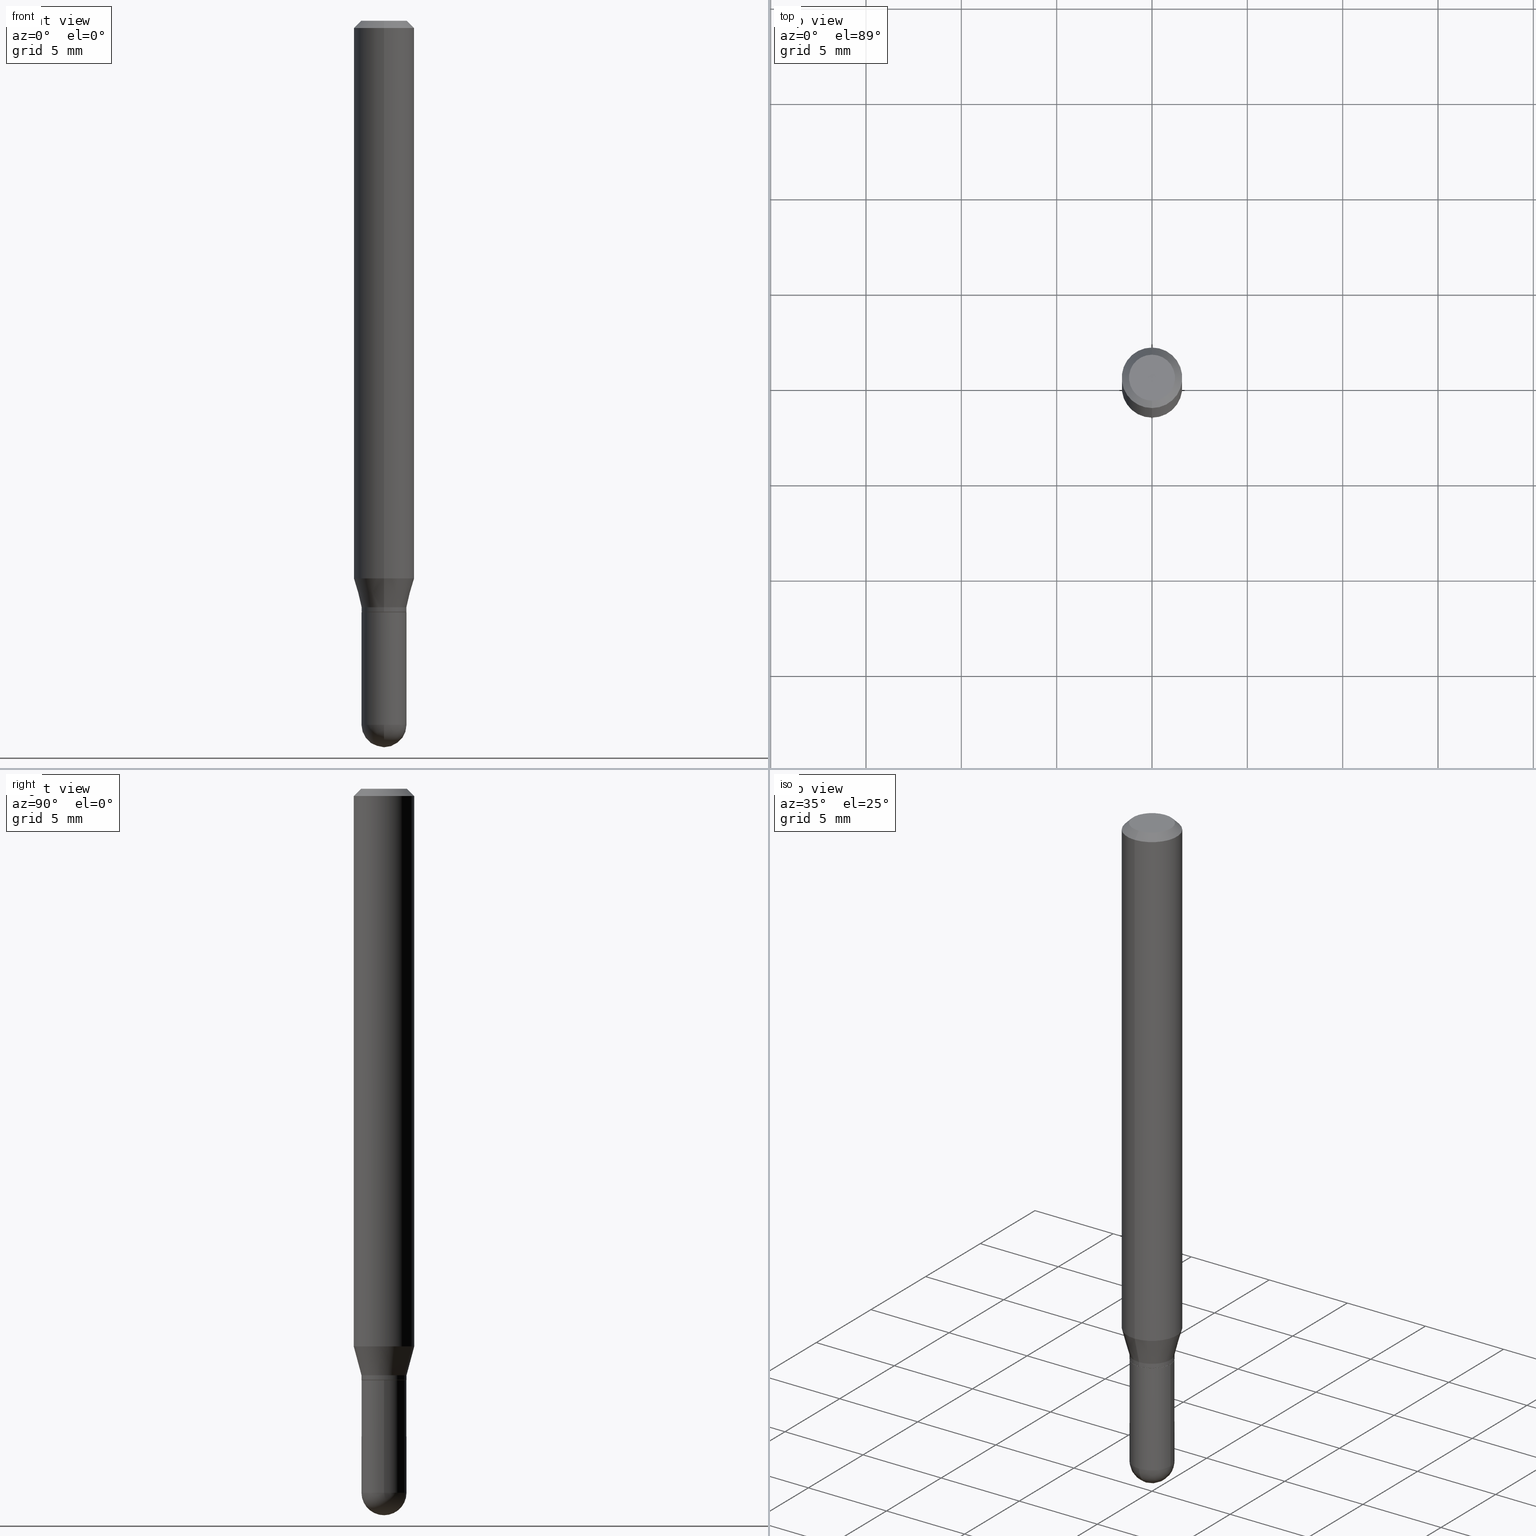
[diagram: canonical four-view strip — front | top / right | iso, engineering-drawing reading convention]
A machine part, canonical four-view strip (front | top / right | iso — engineering-drawing reading convention). The complete STEP part file that produces these views, byte-faithful:
ISO-10303-21;
HEADER;
FILE_DESCRIPTION (( 'STEP AP203' ),
    '1' );
FILE_NAME ('02633.STEP',
    '2024-03-07T20:55:26',
    ( '' ),
    ( '' ),
    'SwSTEP 2.0',
    'SolidWorks 2023',
    '' );
FILE_SCHEMA (( 'CONFIG_CONTROL_DESIGN' ));
ENDSEC;

DATA;
#1 = EDGE_LOOP ( 'NONE', ( #440, #164, #107, #219, #493 ) ) ;
#2 = DATE_AND_TIME ( #269, #470 ) ;
#3 = ORIENTED_EDGE ( 'NONE', *, *, #111, .F. ) ;
#4 = EDGE_CURVE ( 'NONE', #146, #260, #88, .T. ) ;
#5 = FACE_OUTER_BOUND ( 'NONE', #93, .T. ) ;
#6 = ORIENTED_EDGE ( 'NONE', *, *, #38, .T. ) ;
#7 = AXIS2_PLACEMENT_3D ( 'NONE', #403, #51, #439 ) ;
#8 = VECTOR ( 'NONE', #499, 39.37007874015748143 ) ;
#9 = DIRECTION ( 'NONE',  ( -6.982962677686266711E-15, -1.000000000000000000, 2.937470960929311090E-15 ) ) ;
#10 = ADVANCED_FACE ( 'NONE', ( #222 ), #58, .T. ) ;
#11 = VERTEX_POINT ( 'NONE', #15 ) ;
#12 = DIRECTION ( 'NONE',  ( 6.982962677686265922E-15, 1.000000000000000000, -3.491560663196514639E-15 ) ) ;
#13 = VERTEX_POINT ( 'NONE', #455 ) ;
#14 = CARTESIAN_POINT ( 'NONE',  ( 3.550512386545411977E-29, -5.080562733624547023E-15, -1.453500000000000236 ) ) ;
#15 = CARTESIAN_POINT ( 'NONE',  ( -0.04649999999999999967, -4.338581048239549797E-15, -1.453500000000000236 ) ) ;
#16 = EDGE_CURVE ( 'NONE', #405, #497, #435, .T. ) ;
#17 = DIRECTION ( 'NONE',  ( -1.807323732225332900E-15, -0.2588190451025185745, 0.9659258262890687563 ) ) ;
#18 = AXIS2_PLACEMENT_3D ( 'NONE', #450, #104, #256 ) ;
#19 = VERTEX_POINT ( 'NONE', #137 ) ;
#20 = DIRECTION ( 'NONE',  ( 1.000000000000000000, -6.982962677686260400E-15, 0.000000000000000000 ) ) ;
#21 = VERTEX_POINT ( 'NONE', #293 ) ;
#22 = EDGE_CURVE ( 'NONE', #341, #356, #388, .T. ) ;
#23 = CARTESIAN_POINT ( 'NONE',  ( 0.000000000000000000, 0.000000000000000000, 0.000000000000000000 ) ) ;
#24 = ORIENTED_EDGE ( 'NONE', *, *, #177, .T. ) ;
#25 = FACE_OUTER_BOUND ( 'NONE', #491, .T. ) ;
#26 = CIRCLE ( 'NONE', #477, 0.04650000000000006906 ) ;
#27 = ORIENTED_EDGE ( 'NONE', *, *, #344, .F. ) ;
#28 =( NAMED_UNIT ( * ) SI_UNIT ( $, .STERADIAN. ) SOLID_ANGLE_UNIT ( ) );
#29 = APPROVAL ( #42, 'UNSPECIFIED' ) ;
#30 = DIRECTION ( 'NONE',  ( 6.982962677686265922E-15, 1.000000000000000000, -3.483106191921935554E-15 ) ) ;
#31 = LINE ( 'NONE', #345, #79 ) ;
#32 = DIRECTION ( 'NONE',  ( -6.982962677686266711E-15, -1.000000000000000000, 2.937470960929311090E-15 ) ) ;
#33 = CALENDAR_DATE ( 2024, 7, 3 ) ;
#34 = AXIS2_PLACEMENT_3D ( 'NONE', #175, #321, #368 ) ;
#35 = DIRECTION ( 'NONE',  ( -6.982962677686265922E-15, -1.000000000000000000, 2.937470960929311484E-15 ) ) ;
#36 = DATE_AND_TIME ( #81, #106 ) ;
#37 = DIRECTION ( 'NONE',  ( -2.445413414285235808E-29, 3.491560663196514639E-15, 1.000000000000000000 ) ) ;
#38 = EDGE_CURVE ( 'NONE', #19, #336, #85, .T. ) ;
#39 = EDGE_CURVE ( 'NONE', #127, #360, #444, .T. ) ;
#40 = ORIENTED_EDGE ( 'NONE', *, *, #213, .T. ) ;
#41 = VECTOR ( 'NONE', #484, 39.37007874015748143 ) ;
#42 = APPROVAL_STATUS ( 'not_yet_approved' ) ;
#43 = CC_DESIGN_PERSON_AND_ORGANIZATION_ASSIGNMENT ( #200, #357, ( #422 ) ) ;
#44 = ORIENTED_EDGE ( 'NONE', *, *, #366, .T. ) ;
#45 = FACE_OUTER_BOUND ( 'NONE', #367, .T. ) ;
#46 = ORIENTED_EDGE ( 'NONE', *, *, #177, .F. ) ;
#47 = ADVANCED_FACE ( 'NONE', ( #161 ), #404, .T. ) ;
#48 = DIRECTION ( 'NONE',  ( -2.445468806185136597E-29, 3.491481338843145583E-15, 1.000000000000000000 ) ) ;
#49 = ORIENTED_EDGE ( 'NONE', *, *, #501, .T. ) ;
#50 = CIRCLE ( 'NONE', #339, 0.04649999999999999967 ) ;
#51 = DIRECTION ( 'NONE',  ( 1.000000000000000000, -6.982962677686265922E-15, 4.883557194083112340E-29 ) ) ;
#52 = ORIENTED_EDGE ( 'NONE', *, *, #383, .F. ) ;
#53 = CARTESIAN_POINT ( 'NONE',  ( -3.212162831735383649E-16, -0.04600000000000425970, -1.221000000000000085 ) ) ;
#54 = EDGE_CURVE ( 'NONE', #400, #13, #26, .T. ) ;
#55 = ADVANCED_FACE ( 'NONE', ( #115 ), #391, .T. ) ;
#56 = ORIENTED_EDGE ( 'NONE', *, *, #309, .T. ) ;
#57 = LINE ( 'NONE', #172, #232 ) ;
#58 = CYLINDRICAL_SURFACE ( 'NONE', #238, 0.04650000000000006906 ) ;
#59 = AXIS2_PLACEMENT_3D ( 'NONE', #431, #509, #73 ) ;
#60 = LINE ( 'NONE', #101, #41 ) ;
#61 = ORGANIZATION ( 'UNSPECIFIED', 'UNSPECIFIED', '' ) ;
#62 = AXIS2_PLACEMENT_3D ( 'NONE', #140, #369, #297 ) ;
#63 = ORIENTED_EDGE ( 'NONE', *, *, #501, .F. ) ;
#64 = DIRECTION ( 'NONE',  ( -6.982962677686266711E-15, -1.000000000000000000, 3.491560663196515033E-15 ) ) ;
#65 = EDGE_LOOP ( 'NONE', ( #402, #326, #320, #6 ) ) ;
#66 = CARTESIAN_POINT ( 'NONE',  ( 3.304023721284766101E-16, 0.04649999999999577388, -1.220500000000000362 ) ) ;
#67 = EDGE_LOOP ( 'NONE', ( #133, #84, #63, #182 ) ) ;
#68 = AXIS2_PLACEMENT_3D ( 'NONE', #384, #196, #30 ) ;
#69 = AXIS2_PLACEMENT_3D ( 'NONE', #163, #319, #275 ) ;
#70 = DIRECTION ( 'NONE',  ( -6.982962677686265922E-15, -1.000000000000000000, 4.370956789862821150E-15 ) ) ;
#71 = CYLINDRICAL_SURFACE ( 'NONE', #280, 0.04649999999999999967 ) ;
#72 = EDGE_CURVE ( 'NONE', #127, #19, #168, .T. ) ;
#73 = DIRECTION ( 'NONE',  ( -6.982962677686266711E-15, -1.000000000000000000, 3.491560663196515033E-15 ) ) ;
#74 = DIRECTION ( 'NONE',  ( -6.982962677686266711E-15, -1.000000000000000000, 2.937470960929311090E-15 ) ) ;
#75 = CARTESIAN_POINT ( 'NONE',  ( 3.247077645124412269E-16, 0.04649999999999573919, -1.221000000000000307 ) ) ;
#76 = PERSON_AND_ORGANIZATION ( #201, #61 ) ;
#77 = CIRCLE ( 'NONE', #362, 0.04599999999999999922 ) ;
#78 = FACE_OUTER_BOUND ( 'NONE', #394, .T. ) ;
#79 = VECTOR ( 'NONE', #380, 39.37007874015748143 ) ;
#80 = APPROVAL ( #159, 'UNSPECIFIED' ) ;
#81 = CALENDAR_DATE ( 2024, 7, 3 ) ;
#82 = PERSON_AND_ORGANIZATION_ROLE ( 'design_owner' ) ;
#83 = AXIS2_PLACEMENT_3D ( 'NONE', #202, #262, #32 ) ;
#84 = ORIENTED_EDGE ( 'NONE', *, *, #433, .T. ) ;
#86 = MANIFOLD_SOLID_BREP ( 'Body-Move/Copy2[2]', #472 ) ;
#85 = CIRCLE ( 'NONE', #18, 0.06250000000000000000 ) ;
#87 =( GEOMETRIC_REPRESENTATION_CONTEXT ( 3 ) GLOBAL_UNCERTAINTY_ASSIGNED_CONTEXT ( ( #456 ) ) GLOBAL_UNIT_ASSIGNED_CONTEXT ( ( #451, #337, #28 ) ) REPRESENTATION_CONTEXT ( 'NONE', 'WORKASPACE' ) );
#88 = CIRCLE ( 'NONE', #62, 0.04649999999999999967 ) ;
#89 = PERSON_AND_ORGANIZATION ( #201, #61 ) ;
#90 = CARTESIAN_POINT ( 'NONE',  ( 3.668120121427934129E-31, -5.237340994794886540E-17, -0.01500000000000032904 ) ) ;
#91 = ORIENTED_EDGE ( 'NONE', *, *, #274, .F. ) ;
#92 = DIRECTION ( 'NONE',  ( -6.982962677686265922E-15, -1.000000000000000000, 2.937470960929311484E-15 ) ) ;
#93 = EDGE_LOOP ( 'NONE', ( #44, #129, #27, #167 ) ) ;
#94 = CARTESIAN_POINT ( 'NONE',  ( -3.773273898774340269E-16, -0.04749999999999999362, -1.622940483035402324E-16 ) ) ;
#95 = ORIENTED_EDGE ( 'NONE', *, *, #111, .T. ) ;
#96 = AXIS2_PLACEMENT_3D ( 'NONE', #102, #373, #295 ) ;
#97 = ADVANCED_FACE ( 'NONE', ( #78 ), #223, .T. ) ;
#98 = ADVANCED_FACE ( 'NONE', ( #5 ), #119, .T. ) ;
#99 = CARTESIAN_POINT ( 'NONE',  ( 3.304023721284470278E-16, 0.04650000000000006906, -1.623575708386381843E-16 ) ) ;
#100 = ORIENTED_EDGE ( 'NONE', *, *, #4, .T. ) ;
#101 = CARTESIAN_POINT ( 'NONE',  ( 3.268496584496758595E-16, 0.04599999999999573874, -1.221000000000000307 ) ) ;
#102 = CARTESIAN_POINT ( 'NONE',  ( 3.550512386545411977E-29, -5.080562733624547023E-15, -1.453500000000000236 ) ) ;
#103 = FACE_OUTER_BOUND ( 'NONE', #170, .T. ) ;
#104 = DIRECTION ( 'NONE',  ( -2.445413414285235808E-29, 3.491560663196514639E-15, 1.000000000000000000 ) ) ;
#105 = AXIS2_PLACEMENT_3D ( 'NONE', #310, #272, #151 ) ;
#106 = LOCAL_TIME ( 15, 55, 26.00000000000000000, #512 ) ;
#107 = ORIENTED_EDGE ( 'NONE', *, *, #16, .T. ) ;
#108 = EDGE_CURVE ( 'NONE', #400, #21, #458, .T. ) ;
#109 = ORIENTED_EDGE ( 'NONE', *, *, #39, .T. ) ;
#110 = CARTESIAN_POINT ( 'NONE',  ( 4.364351673553919652E-16, 0.06249999999999995143, -0.01500000000000054588 ) ) ;
#111 = EDGE_CURVE ( 'NONE', #21, #187, #372, .T. ) ;
#112 = CARTESIAN_POINT ( 'NONE',  ( 0.04649999999999999967, -4.993691184880407779E-15, -1.453500000000000236 ) ) ;
#113 = CIRCLE ( 'NONE', #298, 0.04650000000000006212 ) ;
#114 = APPROVAL_PERSON_ORGANIZATION ( #192, #29, #237 ) ;
#115 = FACE_OUTER_BOUND ( 'NONE', #445, .T. ) ;
#116 = DIRECTION ( 'NONE',  ( -6.982962677686265922E-15, -1.000000000000000000, 5.874941921858619813E-15 ) ) ;
#117 = PRODUCT_RELATED_PRODUCT_CATEGORY ( 'detail', '', ( #179 ) ) ;
#118 = CARTESIAN_POINT ( 'NONE',  ( -4.364351673553635169E-16, -0.06250000000000402456, -1.151287187078898544 ) ) ;
#119 = CONICAL_SURFACE ( 'NONE', #185, 0.04599999999999999922, 0.7853981633974739252 ) ;
#120 = CARTESIAN_POINT ( 'NONE',  ( -4.364351673553916201E-16, -0.06250000000000000000, 2.182225414497821649E-16 ) ) ;
#121 = PRODUCT_DEFINITION ( 'UNKNOWN', '', #422, #498 ) ;
#122 = COORDINATED_UNIVERSAL_TIME_OFFSET ( 5, 0, .BEHIND. ) ;
#123 = ORIENTED_EDGE ( 'NONE', *, *, #313, .T. ) ;
#124 = COORDINATED_UNIVERSAL_TIME_OFFSET ( 5, 0, .BEHIND. ) ;
#125 = ADVANCED_FACE ( 'NONE', ( #265 ), #224, .F. ) ;
#126 = CIRCLE ( 'NONE', #411, 0.04749999999999999362 ) ;
#127 = VERTEX_POINT ( 'NONE', #241 ) ;
#128 = DIRECTION ( 'NONE',  ( -2.445468806185136877E-29, 3.491481338843145188E-15, 1.000000000000000000 ) ) ;
#129 = ORIENTED_EDGE ( 'NONE', *, *, #273, .T. ) ;
#130 = CARTESIAN_POINT ( 'NONE',  ( 2.985849778842273332E-29, -4.263195569762945268E-15, -1.221000000000000085 ) ) ;
#131 = EDGE_LOOP ( 'NONE', ( #100, #289 ) ) ;
#132 = CARTESIAN_POINT ( 'NONE',  ( -3.212162831735383649E-16, -0.04600000000000425970, -1.221000000000000085 ) ) ;
#133 = ORIENTED_EDGE ( 'NONE', *, *, #220, .T. ) ;
#134 = AXIS2_PLACEMENT_3D ( 'NONE', #229, #387, #35 ) ;
#135 = LOCAL_TIME ( 15, 55, 26.00000000000000000, #476 ) ;
#136 = DIRECTION ( 'NONE',  ( -2.445468806185136597E-29, 3.491481338843145583E-15, 1.000000000000000000 ) ) ;
#137 = CARTESIAN_POINT ( 'NONE',  ( 4.440892098500909166E-16, 0.06249999999999995143, -0.01500000000000054588 ) ) ;
#138 = CC_DESIGN_DATE_AND_TIME_ASSIGNMENT ( #36, #231, ( #145 ) ) ;
#139 = DIRECTION ( 'NONE',  ( -6.982962677686265922E-15, -1.000000000000000000, 0.000000000000000000 ) ) ;
#140 = CARTESIAN_POINT ( 'NONE',  ( 2.985917412352052273E-29, -4.263098714727481320E-15, -1.221000000000000085 ) ) ;
#141 = LENGTH_MEASURE_WITH_UNIT ( LENGTH_MEASURE( 0.02539999999999999897 ), #228 );
#142 = EDGE_CURVE ( 'NONE', #360, #127, #126, .T. ) ;
#143 = ORIENTED_EDGE ( 'NONE', *, *, #309, .F. ) ;
#144 = FACE_OUTER_BOUND ( 'NONE', #245, .T. ) ;
#145 = SECURITY_CLASSIFICATION ( '', '', #471 ) ;
#146 = VERTEX_POINT ( 'NONE', #156 ) ;
#147 = PRODUCT_DEFINITION_SHAPE ( 'NONE', 'NONE',  #121 ) ;
#148 = CARTESIAN_POINT ( 'NONE',  ( -3.247077645123761459E-16, -0.04650000000000512751, -1.453500000000000014 ) ) ;
#149 = ORIENTED_EDGE ( 'NONE', *, *, #480, .T. ) ;
#150 = CYLINDRICAL_SURFACE ( 'NONE', #511, 0.04650000000000006906 ) ;
#151 = DIRECTION ( 'NONE',  ( -6.982962677686265922E-15, -1.000000000000000000, 3.491560663196514639E-15 ) ) ;
#152 = DIRECTION ( 'NONE',  ( -2.445413414285235808E-29, 3.491560663196514639E-15, 1.000000000000000000 ) ) ;
#153 = AXIS2_PLACEMENT_3D ( 'NONE', #75, #460, #500 ) ;
#154 = APPROVAL_PERSON_ORGANIZATION ( #157, #80, #311 ) ;
#155 = CC_DESIGN_APPROVAL ( #80, ( #422 ) ) ;
#156 = CARTESIAN_POINT ( 'NONE',  ( 0.04649999999999999967, -4.587806479239892817E-15, -1.221000000000000085 ) ) ;
#157 = PERSON_AND_ORGANIZATION ( #201, #61 ) ;
#158 = CARTESIAN_POINT ( 'NONE',  ( 2.985849778842273332E-29, -4.263195569762945268E-15, -1.221000000000000085 ) ) ;
#159 = APPROVAL_STATUS ( 'not_yet_approved' ) ;
#160 = ADVANCED_FACE ( 'NONE', ( #350 ), #288, .T. ) ;
#161 = FACE_OUTER_BOUND ( 'NONE', #239, .T. ) ;
#162 = VECTOR ( 'NONE', #128, 39.37007874015748143 ) ;
#163 = CARTESIAN_POINT ( 'NONE',  ( 0.000000000000000000, 0.000000000000000000, 0.000000000000000000 ) ) ;
#164 = ORIENTED_EDGE ( 'NONE', *, *, #383, .T. ) ;
#165 = EDGE_CURVE ( 'NONE', #187, #336, #424, .T. ) ;
#166 = PERSON_AND_ORGANIZATION_ROLE ( 'design_supplier' ) ;
#167 = ORIENTED_EDGE ( 'NONE', *, *, #204, .F. ) ;
#168 = LINE ( 'NONE', #110, #307 ) ;
#169 = CIRCLE ( 'NONE', #134, 0.04650000000000006212 ) ;
#170 = EDGE_LOOP ( 'NONE', ( #109, #381 ) ) ;
#171 = CLOSED_SHELL ( 'NONE', ( #510, #55, #125, #230, #489 ) ) ;
#172 = CARTESIAN_POINT ( 'NONE',  ( -4.287811248607203282E-16, -0.06250000000000005551, -0.01500000000000011047 ) ) ;
#173 = ADVANCED_FACE ( 'NONE', ( #45 ), #268, .T. ) ;
#174 = LINE ( 'NONE', #325, #8 ) ;
#175 = CARTESIAN_POINT ( 'NONE',  ( 2.985917412352052273E-29, -4.263098714727481320E-15, -1.221000000000000085 ) ) ;
#176 = DIRECTION ( 'NONE',  ( -2.445468806185136597E-29, 3.491481338843145583E-15, 1.000000000000000000 ) ) ;
#177 = EDGE_CURVE ( 'NONE', #407, #488, #169, .T. ) ;
#178 = CARTESIAN_POINT ( 'NONE',  ( 2.984627072135130576E-29, -4.261449789431346354E-15, -1.220500000000000140 ) ) ;
#179 = PRODUCT ( '02633', '02633', '', ( #316 ) ) ;
#180 = ORIENTED_EDGE ( 'NONE', *, *, #433, .F. ) ;
#181 = DIRECTION ( 'NONE',  ( -6.982962677686265133E-15, -1.000000000000000000, 2.969399993113329585E-15 ) ) ;
#182 = ORIENTED_EDGE ( 'NONE', *, *, #165, .F. ) ;
#183 = CARTESIAN_POINT ( 'NONE',  ( 0.000000000000000000, 0.000000000000000000, 0.000000000000000000 ) ) ;
#184 = DIRECTION ( 'NONE',  ( -2.445413414285235808E-29, 3.491560663196514639E-15, 1.000000000000000000 ) ) ;
#185 = AXIS2_PLACEMENT_3D ( 'NONE', #352, #427, #306 ) ;
#186 = ADVANCED_FACE ( 'NONE', ( #194 ), #257, .T. ) ;
#187 = VERTEX_POINT ( 'NONE', #118 ) ;
#188 = DIRECTION ( 'NONE',  ( -2.445413414285235808E-29, 3.491560663196514639E-15, 1.000000000000000000 ) ) ;
#189 = CARTESIAN_POINT ( 'NONE',  ( 3.550512386545411977E-29, -5.080562733624547023E-15, -1.453500000000000236 ) ) ;
#190 = CARTESIAN_POINT ( 'NONE',  ( 2.985849778842273332E-29, -4.263195569762945268E-15, -1.221000000000000085 ) ) ;
#191 = DIRECTION ( 'NONE',  ( 1.839019923739603471E-15, 0.2588190451025254024, 0.9659258262890670910 ) ) ;
#192 = PERSON_AND_ORGANIZATION ( #201, #61 ) ;
#193 = CIRCLE ( 'NONE', #34, 0.04649999999999999967 ) ;
#194 = FACE_OUTER_BOUND ( 'NONE', #251, .T. ) ;
#195 = DATE_AND_TIME ( #390, #199 ) ;
#196 = DIRECTION ( 'NONE',  ( 2.445413414285235808E-29, -3.491560663196514639E-15, -1.000000000000000000 ) ) ;
#197 = SHAPE_DEFINITION_REPRESENTATION ( #147, #302 ) ;
#198 = CIRCLE ( 'NONE', #486, 0.06250000000000000000 ) ;
#199 = LOCAL_TIME ( 15, 55, 26.00000000000000000, #235 ) ;
#200 = PERSON_AND_ORGANIZATION ( #201, #61 ) ;
#201 = PERSON ( 'UNSPECIFIED', 'UNSPECIFIED', 'UNSPECIFIED', ('UNSPECIFIED'), ('UNSPECIFIED'), ('UNSPECIFIED') ) ;
#202 = CARTESIAN_POINT ( 'NONE',  ( 2.961395644699421019E-29, -4.228279963130980409E-15, -1.211000000000000298 ) ) ;
#203 = ORIENTED_EDGE ( 'NONE', *, *, #334, .T. ) ;
#204 = EDGE_CURVE ( 'NONE', #259, #488, #270, .T. ) ;
#205 = VECTOR ( 'NONE', #191, 39.37007874015748143 ) ;
#206 = ORIENTED_EDGE ( 'NONE', *, *, #108, .F. ) ;
#207 = CARTESIAN_POINT ( 'NONE',  ( 3.316907271900976096E-16, 0.04749999999999999362, -3.299207214045217911E-16 ) ) ;
#208 = ORIENTED_EDGE ( 'NONE', *, *, #366, .F. ) ;
#209 = CARTESIAN_POINT ( 'NONE',  ( 3.662238424410678814E-29, -5.245763919688771054E-15, -1.500000000000000444 ) ) ;
#210 = ORIENTED_EDGE ( 'NONE', *, *, #165, .T. ) ;
#211 = DIRECTION ( 'NONE',  ( -4.851104656540964275E-15, -0.7071067811865500152, -0.7071067811865450192 ) ) ;
#212 = DIRECTION ( 'NONE',  ( 1.000000000000000000, -6.982962677686260400E-15, 0.000000000000000000 ) ) ;
#213 = EDGE_CURVE ( 'NONE', #11, #260, #292, .T. ) ;
#214 = VECTOR ( 'NONE', #507, 39.37007874015748143 ) ;
#215 = AXIS2_PLACEMENT_3D ( 'NONE', #207, #365, #12 ) ;
#216 = CARTESIAN_POINT ( 'NONE',  ( -0.04649999999999999967, 3.304023721284465841E-16, -2.287304816968531530E-30 ) ) ;
#217 = ORIENTED_EDGE ( 'NONE', *, *, #377, .T. ) ;
#218 = DIRECTION ( 'NONE',  ( -2.445413414285235808E-29, 3.491560663196514639E-15, 1.000000000000000000 ) ) ;
#219 = ORIENTED_EDGE ( 'NONE', *, *, #397, .T. ) ;
#220 = EDGE_CURVE ( 'NONE', #187, #21, #198, .T. ) ;
#221 = FACE_OUTER_BOUND ( 'NONE', #1, .T. ) ;
#222 = FACE_OUTER_BOUND ( 'NONE', #379, .T. ) ;
#223 = CONICAL_SURFACE ( 'NONE', #83, 0.04650000000000006906, 0.2617993877991507401 ) ;
#224 = PLANE ( 'NONE',  #153 ) ;
#225 = DIRECTION ( 'NONE',  ( 1.000000000000000000, -6.982962677686267499E-15, 4.876176775795936353E-29 ) ) ;
#226 = CC_DESIGN_PERSON_AND_ORGANIZATION_ASSIGNMENT ( #392, #166, ( #422 ) ) ;
#227 = CARTESIAN_POINT ( 'NONE',  ( 2.961395644699421019E-29, -4.228279963130980409E-15, -1.211000000000000298 ) ) ;
#228 =( LENGTH_UNIT ( ) NAMED_UNIT ( * ) SI_UNIT ( $, .METRE. ) );
#229 = CARTESIAN_POINT ( 'NONE',  ( 2.984627072135130576E-29, -4.261449789431346354E-15, -1.220500000000000140 ) ) ;
#230 = ADVANCED_FACE ( 'NONE', ( #250 ), #401, .T. ) ;
#231 = DATE_TIME_ROLE ( 'classification_date' ) ;
#232 = VECTOR ( 'NONE', #211, 39.37007874015748143 ) ;
#233 = CARTESIAN_POINT ( 'NONE',  ( 8.024457337022753058E-45, -1.145731818504667129E-30, -3.281431798053746659E-16 ) ) ;
#234 = CALENDAR_DATE ( 2024, 7, 3 ) ;
#235 = COORDINATED_UNIVERSAL_TIME_OFFSET ( 5, 0, .BEHIND. ) ;
#236 = ORIENTED_EDGE ( 'NONE', *, *, #327, .T. ) ;
#237 = APPROVAL_ROLE ( '' ) ;
#238 = AXIS2_PLACEMENT_3D ( 'NONE', #409, #184, #338 ) ;
#239 = EDGE_LOOP ( 'NONE', ( #333, #236, #49, #438 ) ) ;
#240 = PERSON_AND_ORGANIZATION_ROLE ( 'creator' ) ;
#241 = CARTESIAN_POINT ( 'NONE',  ( 3.840629472727447874E-16, 0.04749999999999999362, -4.939923113072091241E-16 ) ) ;
#242 = EDGE_CURVE ( 'NONE', #356, #11, #263, .T. ) ;
#243 = ORIENTED_EDGE ( 'NONE', *, *, #480, .F. ) ;
#244 = CARTESIAN_POINT ( 'NONE',  ( 3.304023721284823786E-16, 0.04649999999999496897, -1.453500000000000458 ) ) ;
#245 = EDGE_LOOP ( 'NONE', ( #283, #24, #149, #398 ) ) ;
#246 = DIRECTION ( 'NONE',  ( 1.000000000000000000, -6.982962677686260400E-15, 0.000000000000000000 ) ) ;
#247 = VECTOR ( 'NONE', #282, 39.37007874015748143 ) ;
#248 = ORIENTED_EDGE ( 'NONE', *, *, #4, .F. ) ;
#249 = CC_DESIGN_APPROVAL ( #374, ( #145 ) ) ;
#250 = FACE_OUTER_BOUND ( 'NONE', #495, .T. ) ;
#251 = EDGE_LOOP ( 'NONE', ( #300, #277, #475, #46 ) ) ;
#252 = CARTESIAN_POINT ( 'NONE',  ( 3.554488909790096218E-29, -5.074868126008512823E-15, -1.453500000000000236 ) ) ;
#253 = MANIFOLD_SOLID_BREP ( 'Body-Move/Copy2[1]', #171 ) ;
#254 = ORIENTED_EDGE ( 'NONE', *, *, #220, .F. ) ;
#255 = DIRECTION ( 'NONE',  ( -2.445413414285235808E-29, 3.491560663196514639E-15, 1.000000000000000000 ) ) ;
#256 = DIRECTION ( 'NONE',  ( -6.982962677686265922E-15, -1.000000000000000000, 3.483106191921935554E-15 ) ) ;
#257 = CONICAL_SURFACE ( 'NONE', #494, 0.04599999999999999922, 0.7853981633974739252 ) ;
#258 = CARTESIAN_POINT ( 'NONE',  ( -3.247077645123820623E-16, -0.04650000000000435035, -1.220499999999999918 ) ) ;
#259 = VERTEX_POINT ( 'NONE', #132 ) ;
#260 = VERTEX_POINT ( 'NONE', #447 ) ;
#261 = CARTESIAN_POINT ( 'NONE',  ( 2.961395644699421019E-29, -4.228279963130980409E-15, -1.211000000000000298 ) ) ;
#262 = DIRECTION ( 'NONE',  ( -2.445413414285235808E-29, 3.491560663196514639E-15, 1.000000000000000000 ) ) ;
#263 = CIRCLE ( 'NONE', #469, 0.04649999999999999967 ) ;
#264 = DIRECTION ( 'NONE',  ( -6.982962677686265922E-15, -1.000000000000000000, 3.491560663196514639E-15 ) ) ;
#265 = FACE_OUTER_BOUND ( 'NONE', #131, .T. ) ;
#266 = DIMENSIONAL_EXPONENTS ( 1.000000000000000000, 0.000000000000000000, 0.000000000000000000, 0.000000000000000000, 0.000000000000000000, 0.000000000000000000, 0.000000000000000000 ) ;
#267 = DIRECTION ( 'NONE',  ( -6.982962677686265922E-15, -1.000000000000000000, 3.491560663196514639E-15 ) ) ;
#268 = CYLINDRICAL_SURFACE ( 'NONE', #105, 0.06250000000000000000 ) ;
#269 = CALENDAR_DATE ( 2024, 7, 3 ) ;
#270 = LINE ( 'NONE', #53, #396 ) ;
#271 = AXIS2_PLACEMENT_3D ( 'NONE', #14, #490, #139 ) ;
#272 = DIRECTION ( 'NONE',  ( -2.445413414285235808E-29, 3.491560663196514639E-15, 1.000000000000000000 ) ) ;
#273 = EDGE_CURVE ( 'NONE', #317, #407, #60, .T. ) ;
#274 = EDGE_CURVE ( 'NONE', #497, #356, #503, .T. ) ;
#275 = DIRECTION ( 'NONE',  ( 1.000000000000000000, 0.000000000000000000, 0.000000000000000000 ) ) ;
#276 = APPROVAL_ROLE ( '' ) ;
#277 = ORIENTED_EDGE ( 'NONE', *, *, #426, .T. ) ;
#278 = APPLICATION_PROTOCOL_DEFINITION ( 'international standard', 'config_control_design', 1994, #285 ) ;
#279 = AXIS2_PLACEMENT_3D ( 'NONE', #252, #48, #361 ) ;
#280 = AXIS2_PLACEMENT_3D ( 'NONE', #308, #462, #225 ) ;
#281 = ORIENTED_EDGE ( 'NONE', *, *, #22, .F. ) ;
#282 = DIRECTION ( 'NONE',  ( -2.445413414285235808E-29, 3.491560663196514639E-15, 1.000000000000000000 ) ) ;
#283 = ORIENTED_EDGE ( 'NONE', *, *, #334, .F. ) ;
#284 = CARTESIAN_POINT ( 'NONE',  ( -3.247077645123822595E-16, -0.04650000000000429484, -1.211000000000000076 ) ) ;
#285 = APPLICATION_CONTEXT ( 'configuration controlled 3d designs of mechanical parts and assemblies' ) ;
#286 = ORIENTED_EDGE ( 'NONE', *, *, #313, .F. ) ;
#287 = DIRECTION ( 'NONE',  ( -6.982962677686265922E-15, -1.000000000000000000, 4.370956789862821150E-15 ) ) ;
#288 = CONICAL_SURFACE ( 'NONE', #68, 0.06250000000000000000, 0.7853981633974483900 ) ;
#289 = ORIENTED_EDGE ( 'NONE', *, *, #291, .T. ) ;
#290 = AXIS2_PLACEMENT_3D ( 'NONE', #261, #152, #74 ) ;
#291 = EDGE_CURVE ( 'NONE', #260, #146, #193, .T. ) ;
#292 = LINE ( 'NONE', #216, #162 ) ;
#293 = CARTESIAN_POINT ( 'NONE',  ( 4.440892098500906207E-16, 0.06249999999999597544, -1.151287187078898988 ) ) ;
#294 = CARTESIAN_POINT ( 'NONE',  ( 3.554488909790096218E-29, -5.074868126008512823E-15, -1.453500000000000236 ) ) ;
#295 = DIRECTION ( 'NONE',  ( 7.105427357600999492E-15, 1.000000000000000000, 0.000000000000000000 ) ) ;
#296 = FACE_OUTER_BOUND ( 'NONE', #481, .T. ) ;
#297 = DIRECTION ( 'NONE',  ( 1.000000000000000000, -6.982962677686260400E-15, 0.000000000000000000 ) ) ;
#298 = AXIS2_PLACEMENT_3D ( 'NONE', #178, #328, #92 ) ;
#299 = CARTESIAN_POINT ( 'NONE',  ( 2.985849778842273332E-29, -4.263195569762945268E-15, -1.221000000000000085 ) ) ;
#300 = ORIENTED_EDGE ( 'NONE', *, *, #273, .F. ) ;
#301 = CYLINDRICAL_SURFACE ( 'NONE', #354, 0.06250000000000000000 ) ;
#302 = ADVANCED_BREP_SHAPE_REPRESENTATION ( '02633', ( #253, #86, #69 ), #87 ) ;
#303 = ORIENTED_EDGE ( 'NONE', *, *, #397, .F. ) ;
#304 = CC_DESIGN_PERSON_AND_ORGANIZATION_ASSIGNMENT ( #89, #82, ( #179 ) ) ;
#305 = DIRECTION ( 'NONE',  ( -2.445468806185136597E-29, 3.491481338843145583E-15, 1.000000000000000000 ) ) ;
#306 = DIRECTION ( 'NONE',  ( -6.982962677686265133E-15, -1.000000000000000000, 2.969399993113329585E-15 ) ) ;
#307 = VECTOR ( 'NONE', #314, 39.37007874015748143 ) ;
#308 = CARTESIAN_POINT ( 'NONE',  ( 0.000000000000000000, 0.000000000000000000, 0.000000000000000000 ) ) ;
#309 = EDGE_CURVE ( 'NONE', #13, #187, #443, .T. ) ;
#310 = CARTESIAN_POINT ( 'NONE',  ( 0.000000000000000000, 0.000000000000000000, 0.000000000000000000 ) ) ;
#311 = APPROVAL_ROLE ( '' ) ;
#312 = DIRECTION ( 'NONE',  ( -2.445413414285235808E-29, 3.491560663196514639E-15, 1.000000000000000000 ) ) ;
#313 = EDGE_CURVE ( 'NONE', #13, #400, #452, .T. ) ;
#314 = DIRECTION ( 'NONE',  ( 4.937700262164548042E-15, 0.7071067811865451302, -0.7071067811865499042 ) ) ;
#315 = CC_DESIGN_SECURITY_CLASSIFICATION ( #145, ( #422 ) ) ;
#316 = MECHANICAL_CONTEXT ( 'NONE', #285, 'mechanical' ) ;
#317 = VERTEX_POINT ( 'NONE', #406 ) ;
#318 = CC_DESIGN_DATE_AND_TIME_ASSIGNMENT ( #349, #506, ( #121 ) ) ;
#319 = DIRECTION ( 'NONE',  ( 0.000000000000000000, 0.000000000000000000, 1.000000000000000000 ) ) ;
#320 = ORIENTED_EDGE ( 'NONE', *, *, #72, .T. ) ;
#321 = DIRECTION ( 'NONE',  ( -2.445468806185136597E-29, 3.491481338843145583E-15, 1.000000000000000000 ) ) ;
#322 = VECTOR ( 'NONE', #17, 39.37007874015748854 ) ;
#323 = ORIENTED_EDGE ( 'NONE', *, *, #242, .F. ) ;
#324 = LINE ( 'NONE', #99, #247 ) ;
#325 = CARTESIAN_POINT ( 'NONE',  ( 0.04649999999999999967, -3.247077645124114474E-16, 2.267422200745110326E-30 ) ) ;
#326 = ORIENTED_EDGE ( 'NONE', *, *, #39, .F. ) ;
#327 = EDGE_CURVE ( 'NONE', #360, #336, #57, .T. ) ;
#328 = DIRECTION ( 'NONE',  ( -2.445413414285235808E-29, 3.491560663196514639E-15, 1.000000000000000000 ) ) ;
#329 = AXIS2_PLACEMENT_3D ( 'NONE', #408, #441, #9 ) ;
#330 = ORIENTED_EDGE ( 'NONE', *, *, #108, .T. ) ;
#331 = AXIS2_PLACEMENT_3D ( 'NONE', #425, #502, #415 ) ;
#332 = DIRECTION ( 'NONE',  ( -6.982962677686265133E-15, -1.000000000000000000, 2.969399993113329585E-15 ) ) ;
#333 = ORIENTED_EDGE ( 'NONE', *, *, #142, .F. ) ;
#334 = EDGE_CURVE ( 'NONE', #407, #400, #324, .T. ) ;
#335 = CARTESIAN_POINT ( 'NONE',  ( -3.247077645124118911E-16, -0.04650000000000006906, 1.623575708386381843E-16 ) ) ;
#336 = VERTEX_POINT ( 'NONE', #482 ) ;
#337 =( NAMED_UNIT ( * ) PLANE_ANGLE_UNIT ( ) SI_UNIT ( $, .RADIAN. ) );
#338 = DIRECTION ( 'NONE',  ( -6.982962677686266711E-15, -1.000000000000000000, 3.491560663196515033E-15 ) ) ;
#339 = AXIS2_PLACEMENT_3D ( 'NONE', #294, #449, #246 ) ;
#340 = DIRECTION ( 'NONE',  ( -2.445413414285235808E-29, 3.491560663196514639E-15, 1.000000000000000000 ) ) ;
#341 = VERTEX_POINT ( 'NONE', #209 ) ;
#342 = FACE_OUTER_BOUND ( 'NONE', #376, .T. ) ;
#343 = DIRECTION ( 'NONE',  ( 1.000000000000000000, -6.982962677686265922E-15, 4.883557194083112340E-29 ) ) ;
#344 = EDGE_CURVE ( 'NONE', #488, #407, #113, .T. ) ;
#345 = CARTESIAN_POINT ( 'NONE',  ( 4.440892098500625669E-16, 0.06250000000000000000, -2.182225414497821649E-16 ) ) ;
#346 = DIRECTION ( 'NONE',  ( -6.982962677686266711E-15, -1.000000000000000000, 2.937470960929311090E-15 ) ) ;
#347 = AXIS2_PLACEMENT_3D ( 'NONE', #90, #359, #504 ) ;
#348 = APPROVAL_PERSON_ORGANIZATION ( #76, #374, #276 ) ;
#349 = DATE_AND_TIME ( #33, #135 ) ;
#350 = FACE_OUTER_BOUND ( 'NONE', #65, .T. ) ;
#351 = APPROVAL_DATE_TIME ( #195, #374 ) ;
#352 = CARTESIAN_POINT ( 'NONE',  ( 2.985849778842273332E-29, -4.263195569762945268E-15, -1.221000000000000085 ) ) ;
#353 = PERSON_AND_ORGANIZATION ( #201, #61 ) ;
#354 = AXIS2_PLACEMENT_3D ( 'NONE', #23, #218, #264 ) ;
#355 = APPLICATION_CONTEXT ( 'configuration controlled 3d designs of mechanical parts and assemblies' ) ;
#356 = VERTEX_POINT ( 'NONE', #244 ) ;
#357 = PERSON_AND_ORGANIZATION_ROLE ( 'creator' ) ;
#358 = ORIENTED_EDGE ( 'NONE', *, *, #344, .T. ) ;
#359 = DIRECTION ( 'NONE',  ( 2.445413414285235808E-29, -3.491560663196514639E-15, -1.000000000000000000 ) ) ;
#360 = VERTEX_POINT ( 'NONE', #94 ) ;
#361 = DIRECTION ( 'NONE',  ( 1.000000000000000000, -6.982962677686260400E-15, 0.000000000000000000 ) ) ;
#362 = AXIS2_PLACEMENT_3D ( 'NONE', #130, #255, #332 ) ;
#363 = LOCAL_TIME ( 15, 55, 26.00000000000000000, #124 ) ;
#364 = ORIENTED_EDGE ( 'NONE', *, *, #54, .T. ) ;
#365 = DIRECTION ( 'NONE',  ( 2.445413414285235528E-29, -3.491560663196514639E-15, -1.000000000000000000 ) ) ;
#366 = EDGE_CURVE ( 'NONE', #259, #317, #77, .T. ) ;
#367 = EDGE_LOOP ( 'NONE', ( #180, #95, #210, #413 ) ) ;
#368 = DIRECTION ( 'NONE',  ( 1.000000000000000000, -6.982962677686260400E-15, 0.000000000000000000 ) ) ;
#369 = DIRECTION ( 'NONE',  ( -2.445468806185136597E-29, 3.491481338843145583E-15, 1.000000000000000000 ) ) ;
#370 = CARTESIAN_POINT ( 'NONE',  ( 3.554488909790096218E-29, -5.074868126008512823E-15, -1.453500000000000236 ) ) ;
#371 = AXIS2_PLACEMENT_3D ( 'NONE', #420, #37, #70 ) ;
#372 = CIRCLE ( 'NONE', #371, 0.06250000000000000000 ) ;
#373 = DIRECTION ( 'NONE',  ( 1.000000000000000000, -7.105427357601001070E-15, 4.926315508542082329E-29 ) ) ;
#374 = APPROVAL ( #465, 'UNSPECIFIED' ) ;
#375 = DIRECTION ( 'NONE',  ( -2.445413414285235808E-29, 3.491560663196514639E-15, 1.000000000000000000 ) ) ;
#376 = EDGE_LOOP ( 'NONE', ( #208, #483 ) ) ;
#377 = EDGE_CURVE ( 'NONE', #341, #405, #430, .T. ) ;
#378 = DIRECTION ( 'NONE',  ( -2.445413414285235808E-29, 3.491560663196514639E-15, 1.000000000000000000 ) ) ;
#379 = EDGE_LOOP ( 'NONE', ( #358, #203, #286, #243 ) ) ;
#380 = DIRECTION ( 'NONE',  ( -2.445413414285235808E-29, 3.491560663196514639E-15, 1.000000000000000000 ) ) ;
#381 = ORIENTED_EDGE ( 'NONE', *, *, #142, .T. ) ;
#382 = VECTOR ( 'NONE', #378, 39.37007874015748143 ) ;
#383 = EDGE_CURVE ( 'NONE', #11, #405, #50, .T. ) ;
#384 = CARTESIAN_POINT ( 'NONE',  ( 3.668120121427934129E-31, -5.237340994794886540E-17, -0.01500000000000032904 ) ) ;
#385 = DIRECTION ( 'NONE',  ( -2.445413414285235528E-29, 3.491560663196514639E-15, 1.000000000000000000 ) ) ;
#386 = PLANE ( 'NONE',  #436 ) ;
#387 = DIRECTION ( 'NONE',  ( -2.445413414285235808E-29, 3.491560663196514639E-15, 1.000000000000000000 ) ) ;
#388 = CIRCLE ( 'NONE', #96, 0.04650000000000008987 ) ;
#389 = ADVANCED_FACE ( 'NONE', ( #103 ), #410, .F. ) ;
#390 = CALENDAR_DATE ( 2024, 7, 3 ) ;
#391 = SPHERICAL_SURFACE ( 'NONE', #421, 0.04650000000000008987 ) ;
#392 = PERSON_AND_ORGANIZATION ( #201, #61 ) ;
#393 = DATE_AND_TIME ( #234, #363 ) ;
#394 = EDGE_LOOP ( 'NONE', ( #206, #364, #56, #3 ) ) ;
#395 = PERSON_AND_ORGANIZATION ( #201, #61 ) ;
#396 = VECTOR ( 'NONE', #479, 39.37007874015748143 ) ;
#397 = EDGE_CURVE ( 'NONE', #497, #146, #174, .T. ) ;
#398 = ORIENTED_EDGE ( 'NONE', *, *, #54, .F. ) ;
#399 = DIRECTION ( 'NONE',  ( -6.982962677686266711E-15, -1.000000000000000000, 3.491560663196515033E-15 ) ) ;
#400 = VERTEX_POINT ( 'NONE', #418 ) ;
#401 = SPHERICAL_SURFACE ( 'NONE', #7, 0.04650000000000008987 ) ;
#402 = ORIENTED_EDGE ( 'NONE', *, *, #327, .F. ) ;
#403 = CARTESIAN_POINT ( 'NONE',  ( 3.550512386545411977E-29, -5.080562733624547023E-15, -1.453500000000000236 ) ) ;
#404 = CONICAL_SURFACE ( 'NONE', #347, 0.06250000000000000000, 0.7853981633974483900 ) ;
#405 = VERTEX_POINT ( 'NONE', #148 ) ;
#406 = CARTESIAN_POINT ( 'NONE',  ( 3.286260152890763087E-16, 0.04599999999999573874, -1.221000000000000307 ) ) ;
#407 = VERTEX_POINT ( 'NONE', #66 ) ;
#408 = CARTESIAN_POINT ( 'NONE',  ( 2.961395644699421019E-29, -4.228279963130980409E-15, -1.211000000000000298 ) ) ;
#409 = CARTESIAN_POINT ( 'NONE',  ( 0.000000000000000000, 0.000000000000000000, 0.000000000000000000 ) ) ;
#410 = PLANE ( 'NONE',  #215 ) ;
#411 = AXIS2_PLACEMENT_3D ( 'NONE', #233, #429, #399 ) ;
#412 = AXIS2_PLACEMENT_3D ( 'NONE', #299, #188, #181 ) ;
#413 = ORIENTED_EDGE ( 'NONE', *, *, #38, .F. ) ;
#414 = ORIENTED_EDGE ( 'NONE', *, *, #242, .T. ) ;
#415 = DIRECTION ( 'NONE',  ( -6.982962677686265922E-15, -1.000000000000000000, 3.483106191921935554E-15 ) ) ;
#416 = ORIENTED_EDGE ( 'NONE', *, *, #16, .F. ) ;
#417 = ADVANCED_FACE ( 'NONE', ( #144 ), #150, .T. ) ;
#418 = CARTESIAN_POINT ( 'NONE',  ( 3.872457909892837387E-16, 0.04649999999999584327, -1.211000000000000520 ) ) ;
#419 = ADVANCED_FACE ( 'NONE', ( #342 ), #386, .F. ) ;
#420 = CARTESIAN_POINT ( 'NONE',  ( 2.815373130977454696E-29, -4.019789054446849905E-15, -1.151287187078898766 ) ) ;
#421 = AXIS2_PLACEMENT_3D ( 'NONE', #189, #343, #116 ) ;
#422 = PRODUCT_DEFINITION_FORMATION_WITH_SPECIFIED_SOURCE ( 'ANY', '', #179, .NOT_KNOWN. ) ;
#423 = CARTESIAN_POINT ( 'NONE',  ( 0.000000000000000000, 0.000000000000000000, 0.000000000000000000 ) ) ;
#424 = LINE ( 'NONE', #120, #214 ) ;
#425 = CARTESIAN_POINT ( 'NONE',  ( 3.668120121427934129E-31, -5.237340994794886540E-17, -0.01500000000000032904 ) ) ;
#426 = EDGE_CURVE ( 'NONE', #317, #259, #487, .T. ) ;
#427 = DIRECTION ( 'NONE',  ( -2.445413414285235808E-29, 3.491560663196514639E-15, 1.000000000000000000 ) ) ;
#428 = APPROVAL_DATE_TIME ( #2, #80 ) ;
#429 = DIRECTION ( 'NONE',  ( -2.445413414285235808E-29, 3.491560663196514639E-15, 1.000000000000000000 ) ) ;
#430 = CIRCLE ( 'NONE', #271, 0.04650000000000008987 ) ;
#431 = CARTESIAN_POINT ( 'NONE',  ( 8.024457337022753058E-45, -1.145731818504667129E-30, -3.281431798053746659E-16 ) ) ;
#432 = APPLICATION_PROTOCOL_DEFINITION ( 'international standard', 'config_control_design', 1994, #355 ) ;
#433 = EDGE_CURVE ( 'NONE', #21, #19, #31, .T. ) ;
#434 = ORIENTED_EDGE ( 'NONE', *, *, #274, .T. ) ;
#435 = CIRCLE ( 'NONE', #461, 0.04649999999999999967 ) ;
#436 = AXIS2_PLACEMENT_3D ( 'NONE', #190, #385, #267 ) ;
#437 = CONICAL_SURFACE ( 'NONE', #290, 0.04650000000000006906, 0.2617993877991507401 ) ;
#438 = ORIENTED_EDGE ( 'NONE', *, *, #72, .F. ) ;
#439 = DIRECTION ( 'NONE',  ( -6.982962677686265922E-15, -1.000000000000000000, 5.874941921858619813E-15 ) ) ;
#440 = ORIENTED_EDGE ( 'NONE', *, *, #213, .F. ) ;
#441 = DIRECTION ( 'NONE',  ( -2.445413414285235808E-29, 3.491560663196514639E-15, 1.000000000000000000 ) ) ;
#442 = ORIENTED_EDGE ( 'NONE', *, *, #377, .F. ) ;
#443 = LINE ( 'NONE', #284, #322 ) ;
#444 = CIRCLE ( 'NONE', #59, 0.04749999999999999362 ) ;
#445 = EDGE_LOOP ( 'NONE', ( #442, #454, #91, #416 ) ) ;
#446 = CC_DESIGN_PERSON_AND_ORGANIZATION_ASSIGNMENT ( #395, #240, ( #121 ) ) ;
#447 = CARTESIAN_POINT ( 'NONE',  ( -0.04649999999999999967, -4.338581048239549797E-15, -1.221000000000000085 ) ) ;
#448 = CARTESIAN_POINT ( 'NONE',  ( 3.554488909790096218E-29, -5.074868126008512823E-15, -1.453500000000000236 ) ) ;
#449 = DIRECTION ( 'NONE',  ( -2.445468806185136597E-29, 3.491481338843145583E-15, 1.000000000000000000 ) ) ;
#450 = CARTESIAN_POINT ( 'NONE',  ( 3.668120121427934129E-31, -5.237340994794886540E-17, -0.01500000000000032904 ) ) ;
#451 =( CONVERSION_BASED_UNIT ( 'INCH', #141 ) LENGTH_UNIT ( ) NAMED_UNIT ( #266 ) );
#452 = CIRCLE ( 'NONE', #329, 0.04650000000000006906 ) ;
#453 = AXIS2_PLACEMENT_3D ( 'NONE', #183, #305, #459 ) ;
#454 = ORIENTED_EDGE ( 'NONE', *, *, #22, .T. ) ;
#455 = CARTESIAN_POINT ( 'NONE',  ( -3.247077645123822595E-16, -0.04650000000000429484, -1.211000000000000076 ) ) ;
#456 = UNCERTAINTY_MEASURE_WITH_UNIT (LENGTH_MEASURE( 1.000000000000000082E-05 ), #451, 'distance_accuracy_value', 'NONE');
#457 = CYLINDRICAL_SURFACE ( 'NONE', #453, 0.04649999999999999967 ) ;
#458 = LINE ( 'NONE', #468, #205 ) ;
#459 = DIRECTION ( 'NONE',  ( 1.000000000000000000, -6.982962677686267499E-15, 4.876176775795936353E-29 ) ) ;
#460 = DIRECTION ( 'NONE',  ( 2.438088387897960049E-29, -3.491481338843145188E-15, -1.000000000000000000 ) ) ;
#461 = AXIS2_PLACEMENT_3D ( 'NONE', #448, #176, #212 ) ;
#462 = DIRECTION ( 'NONE',  ( -2.445468806185136597E-29, 3.491481338843145583E-15, 1.000000000000000000 ) ) ;
#463 = CC_DESIGN_PERSON_AND_ORGANIZATION_ASSIGNMENT ( #353, #508, ( #145 ) ) ;
#464 = DIRECTION ( 'NONE',  ( -2.445413414285235808E-29, 3.491560663196514639E-15, 1.000000000000000000 ) ) ;
#465 = APPROVAL_STATUS ( 'not_yet_approved' ) ;
#466 = ADVANCED_FACE ( 'NONE', ( #492 ), #301, .T. ) ;
#467 = DIRECTION ( 'NONE',  ( -6.982962677686265133E-15, -1.000000000000000000, 2.969399993113329585E-15 ) ) ;
#468 = CARTESIAN_POINT ( 'NONE',  ( 3.304023721284766101E-16, 0.04649999999999584327, -1.211000000000000520 ) ) ;
#469 = AXIS2_PLACEMENT_3D ( 'NONE', #370, #136, #20 ) ;
#470 = LOCAL_TIME ( 15, 55, 26.00000000000000000, #122 ) ;
#471 = SECURITY_CLASSIFICATION_LEVEL ( 'unclassified' ) ;
#472 = CLOSED_SHELL ( 'NONE', ( #10, #98, #47, #466, #473, #97, #173, #160, #389, #419, #186, #417 ) ) ;
#473 = ADVANCED_FACE ( 'NONE', ( #296 ), #437, .T. ) ;
#474 = APPROVAL_DATE_TIME ( #393, #29 ) ;
#475 = ORIENTED_EDGE ( 'NONE', *, *, #204, .T. ) ;
#476 = COORDINATED_UNIVERSAL_TIME_OFFSET ( 5, 0, .BEHIND. ) ;
#477 = AXIS2_PLACEMENT_3D ( 'NONE', #227, #464, #346 ) ;
#478 = CC_DESIGN_APPROVAL ( #29, ( #121 ) ) ;
#479 = DIRECTION ( 'NONE',  ( -4.937700262164674260E-15, -0.7071067811865632269, 0.7071067811865319186 ) ) ;
#480 = EDGE_CURVE ( 'NONE', #488, #13, #496, .T. ) ;
#481 = EDGE_LOOP ( 'NONE', ( #123, #330, #254, #143 ) ) ;
#482 = CARTESIAN_POINT ( 'NONE',  ( -4.364351673553912750E-16, -0.06250000000000005551, -0.01500000000000011047 ) ) ;
#483 = ORIENTED_EDGE ( 'NONE', *, *, #426, .F. ) ;
#484 = DIRECTION ( 'NONE',  ( 5.024295867788190974E-15, 0.7071067811865681119, 0.7071067811865270336 ) ) ;
#485 = CARTESIAN_POINT ( 'NONE',  ( 2.815373130977454696E-29, -4.019789054446849905E-15, -1.151287187078898766 ) ) ;
#486 = AXIS2_PLACEMENT_3D ( 'NONE', #485, #375, #287 ) ;
#487 = CIRCLE ( 'NONE', #412, 0.04599999999999999922 ) ;
#488 = VERTEX_POINT ( 'NONE', #258 ) ;
#489 = ADVANCED_FACE ( 'NONE', ( #221 ), #457, .T. ) ;
#490 = DIRECTION ( 'NONE',  ( -1.000000000000000000, 6.982962677686265922E-15, -4.883557194083112340E-29 ) ) ;
#491 = EDGE_LOOP ( 'NONE', ( #414, #40, #248, #303, #434 ) ) ;
#492 = FACE_OUTER_BOUND ( 'NONE', #67, .T. ) ;
#493 = ORIENTED_EDGE ( 'NONE', *, *, #291, .F. ) ;
#494 = AXIS2_PLACEMENT_3D ( 'NONE', #158, #312, #467 ) ;
#495 = EDGE_LOOP ( 'NONE', ( #281, #217, #52, #323 ) ) ;
#496 = LINE ( 'NONE', #335, #382 ) ;
#497 = VERTEX_POINT ( 'NONE', #112 ) ;
#498 = DESIGN_CONTEXT ( 'detailed design', #355, 'design' ) ;
#499 = DIRECTION ( 'NONE',  ( -2.445468806185136877E-29, 3.491481338843145188E-15, 1.000000000000000000 ) ) ;
#500 = DIRECTION ( 'NONE',  ( -1.000000000000000000, 6.982962677686265922E-15, -4.876176775795935793E-29 ) ) ;
#501 = EDGE_CURVE ( 'NONE', #336, #19, #505, .T. ) ;
#502 = DIRECTION ( 'NONE',  ( -2.445413414285235808E-29, 3.491560663196514639E-15, 1.000000000000000000 ) ) ;
#503 = CIRCLE ( 'NONE', #279, 0.04649999999999999967 ) ;
#504 = DIRECTION ( 'NONE',  ( 6.982962677686265922E-15, 1.000000000000000000, -3.483106191921935554E-15 ) ) ;
#505 = CIRCLE ( 'NONE', #331, 0.06250000000000000000 ) ;
#506 = DATE_TIME_ROLE ( 'creation_date' ) ;
#507 = DIRECTION ( 'NONE',  ( -2.445413414285235808E-29, 3.491560663196514639E-15, 1.000000000000000000 ) ) ;
#508 = PERSON_AND_ORGANIZATION_ROLE ( 'classification_officer' ) ;
#509 = DIRECTION ( 'NONE',  ( -2.445413414285235808E-29, 3.491560663196514639E-15, 1.000000000000000000 ) ) ;
#510 = ADVANCED_FACE ( 'NONE', ( #25 ), #71, .T. ) ;
#511 = AXIS2_PLACEMENT_3D ( 'NONE', #423, #340, #64 ) ;
#512 = COORDINATED_UNIVERSAL_TIME_OFFSET ( 5, 0, .BEHIND. ) ;
ENDSEC;
END-ISO-10303-21;
